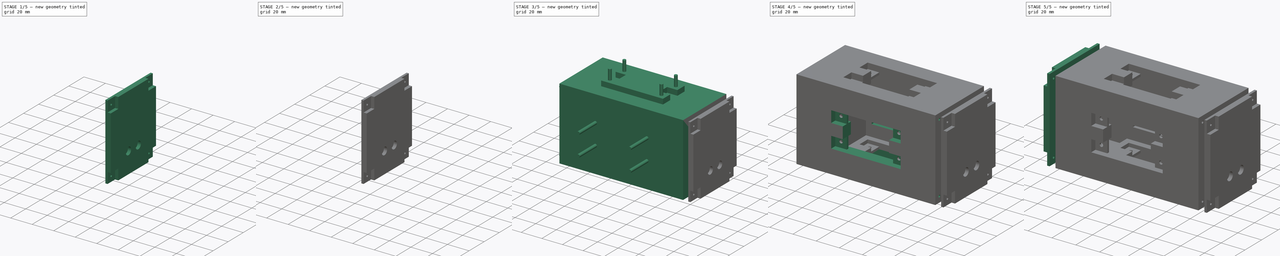
[diagram: build sequence overview — one tinted view per stage of 5, left to right]
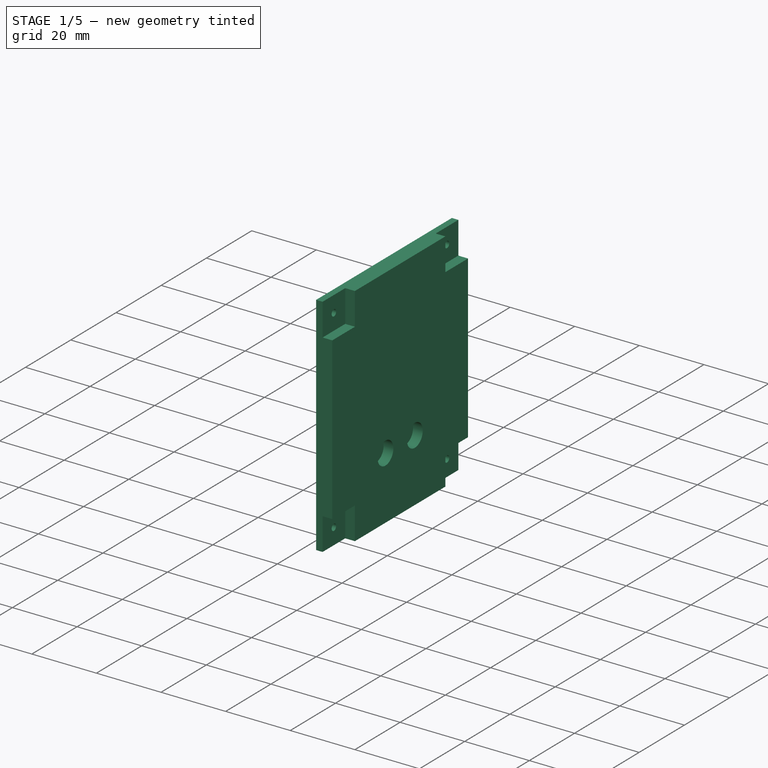
[diagram: stage 1 of 5 — iso view after this stage's code; geometry added in this stage tinted green]
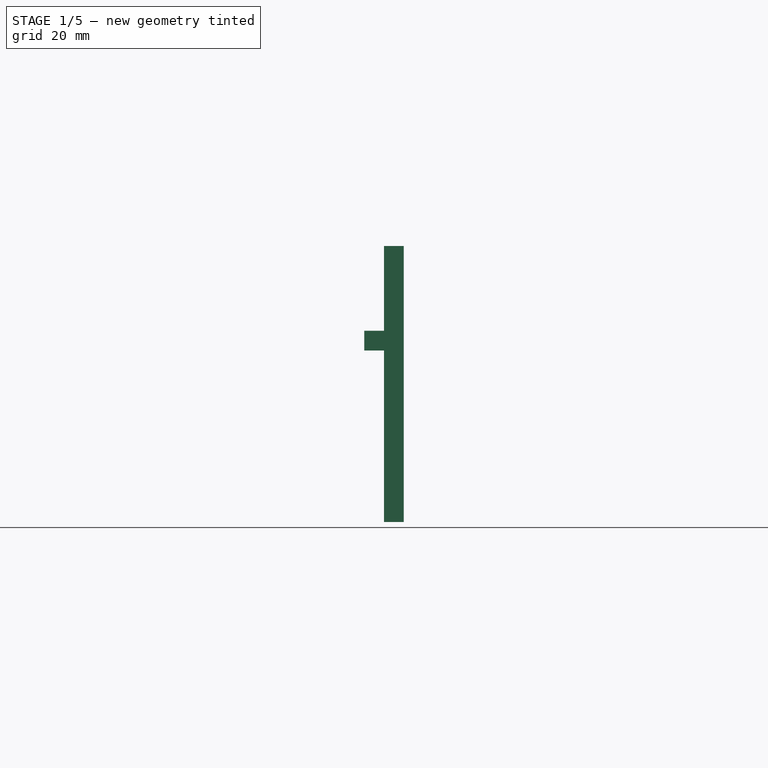
[diagram: stage 1 of 5 — front view after this stage's code; geometry added in this stage tinted green]
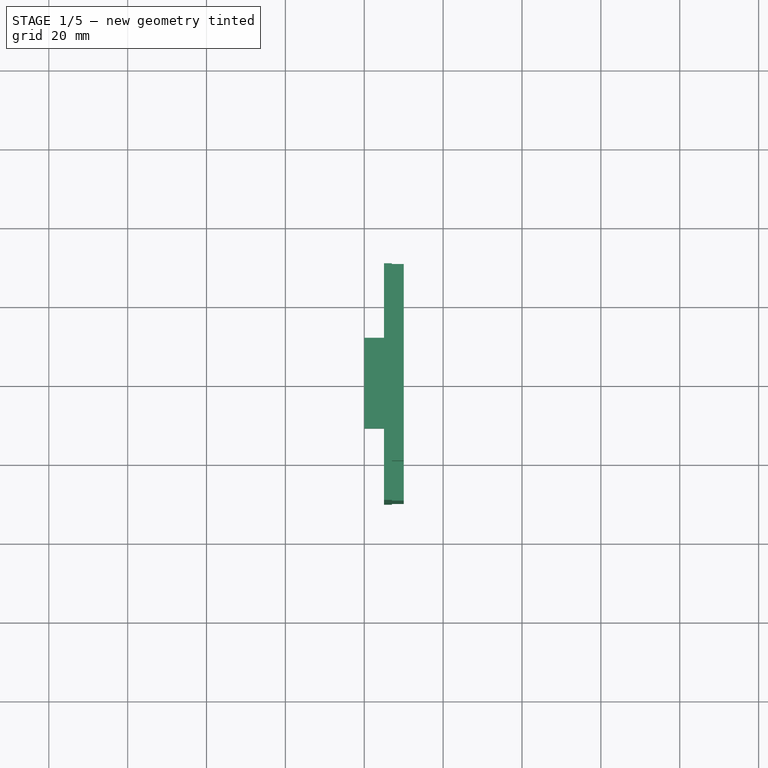
[diagram: stage 1 of 5 — top view after this stage's code; geometry added in this stage tinted green]
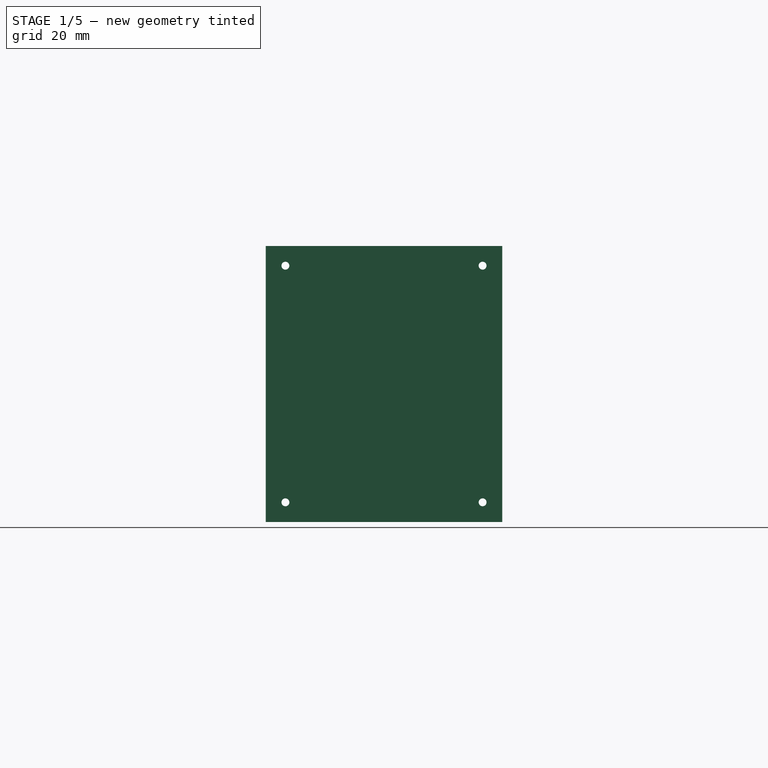
[diagram: stage 1 of 5 — right view after this stage's code; geometry added in this stage tinted green]
FCSTD DOCUMENT  (FreeCAD 0.16R6712 (Git))
Label: Control
License: All rights reserved
LicenseURL: http://en.wikipedia.org/wiki/All_rights_reserved
objects: Part::Cut×17, Part::FeaturePython×14, Part::Box×12, Sketcher::SketchObject×11, Part::Cylinder×10, PartDesign::Pad×6, PartDesign::Pocket×5, App::DocumentObjectGroup×3, Part::Chamfer×1, Part::MultiFuse×1
note: 88 computed .brp shape members not serialized (recipe doc carries the construction recipe); baked Part::Feature solids carry a one-line shape summary decoded from their .brp

FEATURE [Part::Box] Box004  label="BaseTapa001"
  Height = 70
  Length = 5
  Width = 60
FEATURE [Part::Box] Box005  label="HuecoTapa001"
  Height = 10
  Length = 3
  Width = 10
FEATURE [Part::FeaturePython] Array006  label="HuecosTapa001"  # Draft array (typed FeaturePython)
  Angle = 360
  ArrayType = 0
  Axis = (0,0,1)
  Base = -> Box005
  Center = (0,0,0)
  Fuse = false
  IntervalAxis = (0,0,0)
  IntervalX = (0,0,60)
  IntervalY = (0,50,0)
  IntervalZ = (0,0,0)
  NumberPolar = 1
  NumberX = 2
  NumberY = 2
  NumberZ = 1
  Placement = pos=(2,0,0) rot=(0,0,1;0rad)
FEATURE [Part::Cut] Cut007  label="BaseTapa_003"
  Base = -> Box004
  Tool = -> Array006
FEATURE [Part::Cylinder] Cylinder005  label="AgujeroTapa001"
  Angle = 360
  Height = 30
  Placement = pos=(-10,5,5) rot=(0,1,0;1.5708rad)
  Radius = 1
FEATURE [Part::FeaturePython] Array007  label="AgujerosTapa001"  # Draft array (typed FeaturePython)
  Angle = 360
  ArrayType = 0
  Axis = (0,0,1)
  Base = -> Cylinder005
  Center = (0,0,0)
  Fuse = false
  IntervalAxis = (0,0,0)
  IntervalX = (0,0,60)
  IntervalY = (0,50,0)
  IntervalZ = (0,0,0)
  NumberPolar = 1
  NumberX = 2
  NumberY = 2
  NumberZ = 1
FEATURE [Part::Cut] Cut008  label="BaseTapa_B"
  Base = -> Cut007
  Placement = pos=(125,-10,-10) rot=(0,0,1;0rad)
  Tool = -> Array007
FEATURE [Sketcher::SketchObject] Sketch010
  ExternalGeometry = -> [Cut008]
  Placement = pos=(125,-10,-10) rot=(0.57735,-0.57735,-0.57735;2.0944rad)
  Support = -> Cut008 [Face1]
  sketch-geometry (4):
    g0: LineSegment StartX=-41.5 StartY=48.5 StartZ=0 EndX=-18.5 EndY=48.5 EndZ=0
    g1: LineSegment StartX=-18.5 StartY=48.5 StartZ=0 EndX=-18.5 EndY=43.5 EndZ=0
    g2: LineSegment StartX=-18.5 StartY=43.5 StartZ=0 EndX=-41.5 EndY=43.5 EndZ=0
    g3: LineSegment StartX=-41.5 StartY=43.5 StartZ=0 EndX=-41.5 EndY=48.5 EndZ=0
  constraints (14):
    c: Coincident(g0,g1)
    c: Coincident(g1,g2)
    c: Coincident(g2,g3)
    c: Coincident(g3,g0)
    c: Horizontal(g0)
    c: Horizontal(g2)
    c: Vertical(g1)
    c: Vertical(g3)
    c: Equal(g0,g2)
    c: Equal(g3,g1)
    c: DistanceY(g3,g3) = 5
    c: DistanceX(g-3,g0) = 18.5
    c: DistanceY(g0,g-3) = 21.5
    c: DistanceX(g0,g0) = 23
FEATURE [PartDesign::Pad] Pad005  label="BaseTapa_B_2"
  Length = 5
  Length2 = 100
  Placement = pos=(125,-10,-10) rot=(0,0,1;0rad)
  Sketch = -> Sketch010
  Type = 0
FEATURE [Part::Cylinder] Cylinder008  label="AgujeroINT_SopMov"
  Angle = 360
  Height = 2
  Placement = pos=(125,13.5,9.5) rot=(0,1,0;1.5708rad)
  Radius = 1.5
FEATURE [Part::Cylinder] Cylinder009  label="AgujeroEXT_SopMov"
  Angle = 360
  Height = 3
  Placement = pos=(127,13.5,9.5) rot=(0,1,0;1.5708rad)
  Radius = 3.5
FEATURE [Part::FeaturePython] Array012  label="AgujerosINT_SopMov"  # Draft array (typed FeaturePython)
  Angle = 360
  ArrayType = 0
  Axis = (0,0,1)
  Base = -> Cylinder008
  Center = (0,0,0)
  Fuse = false
  IntervalAxis = (0,0,0)
  IntervalX = (0,0,0)
  IntervalY = (0,13,0)
  IntervalZ = (0,0,0)
  NumberPolar = 1
  NumberX = 1
  NumberY = 2
  NumberZ = 1
FEATURE [Part::FeaturePython] Array013  label="AgujerosEXT_SopMov"  # Draft array (typed FeaturePython)
  Angle = 360
  ArrayType = 0
  Axis = (0,0,1)
  Base = -> Cylinder009
  Center = (0,0,0)
  Fuse = false
  IntervalAxis = (0,0,0)
  IntervalX = (0,0,0)
  IntervalY = (0,13,0)
  IntervalZ = (0,0,0)
  NumberPolar = 1
  NumberX = 1
  NumberY = 2
  NumberZ = 1
FEATURE [Part::Cut] Cut015  label="BaseTapa_B_3"
  Base = -> Pad005
  Tool = -> Array013
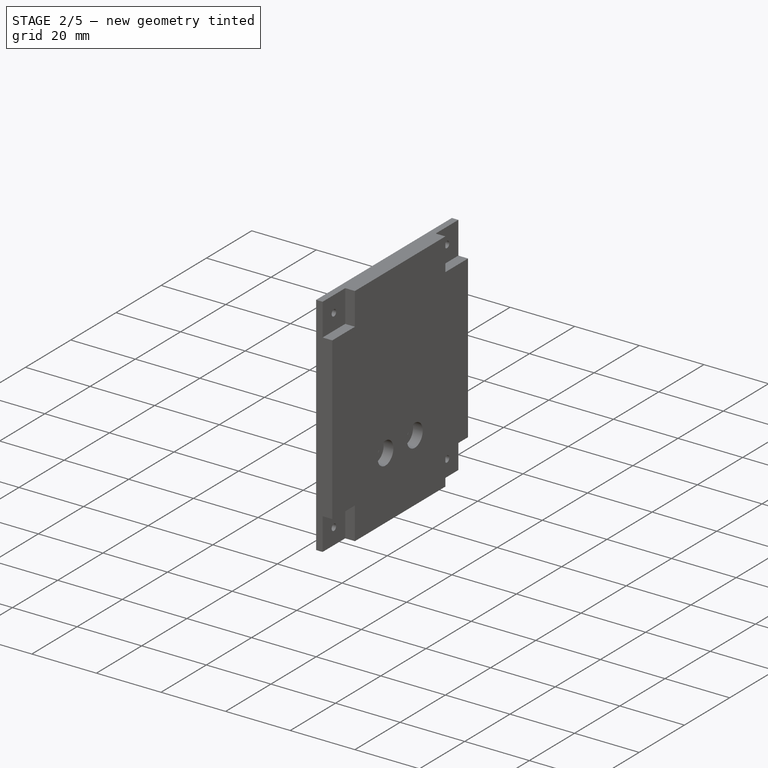
[diagram: stage 2 of 5 — iso view after this stage's code; geometry added in this stage tinted green]
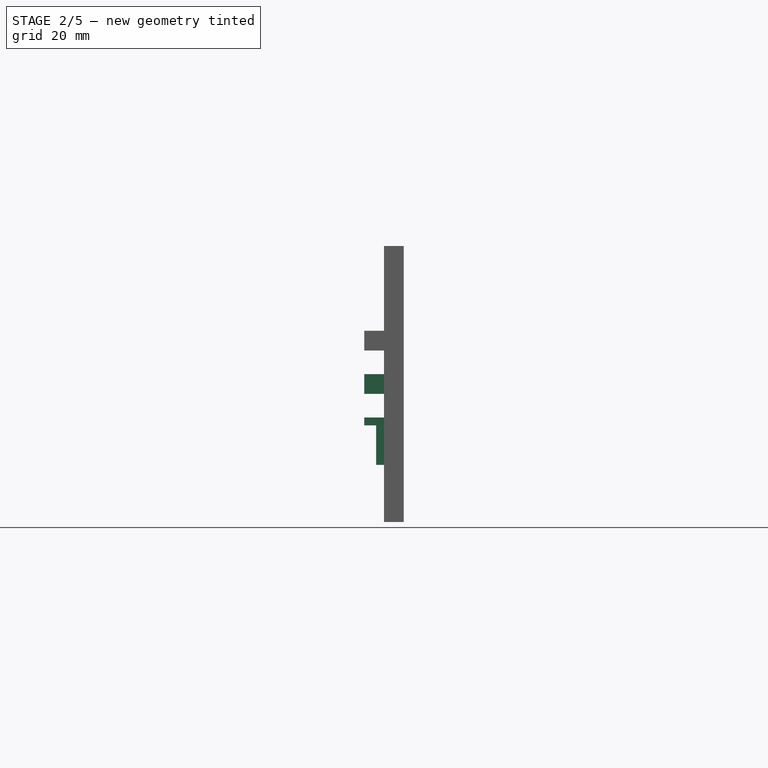
[diagram: stage 2 of 5 — front view after this stage's code; geometry added in this stage tinted green]
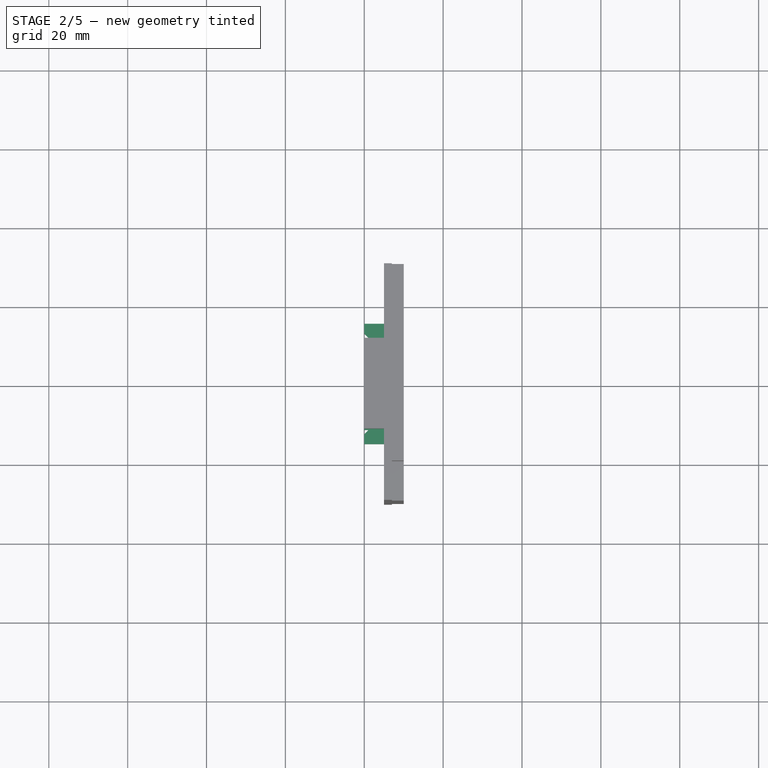
[diagram: stage 2 of 5 — top view after this stage's code; geometry added in this stage tinted green]
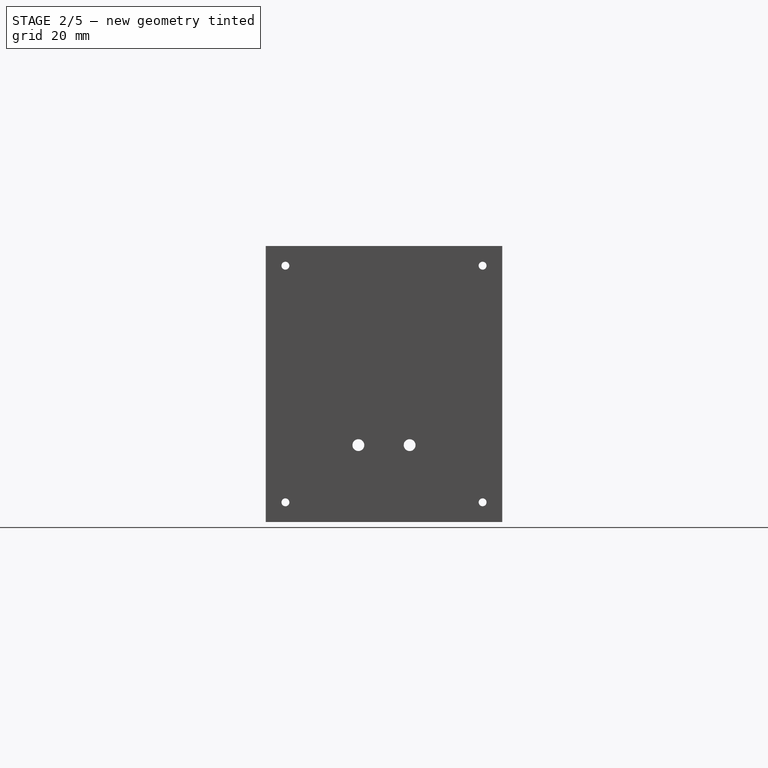
[diagram: stage 2 of 5 — right view after this stage's code; geometry added in this stage tinted green]
FEATURE [Part::Box] Box008  label="Clavija_base"
  Height = 5
  Length = 5
  Width = 5
FEATURE [Part::FeaturePython] Array010  label="Clavijas_base"  # Draft array (typed FeaturePython)
  Angle = 360
  ArrayType = 0
  Axis = (0,0,1)
  Base = -> Box008
  Center = (0,0,0)
  Fuse = false
  IntervalAxis = (0,0,0)
  IntervalX = (25.5,0,0)
  IntervalY = (0,0,0)
  IntervalZ = (0,0,0)
  NumberPolar = 1
  NumberX = 2
  NumberY = 1
  NumberZ = 1
FEATURE [Part::Box] Box009  label="Hueco_clavijas"
  Height = 2
  Length = 23
  Placement = pos=(3.75,0,0) rot=(0,0,1;0rad)
  Width = 5
FEATURE [Part::Cut] Cut012  label="Clavijas_base_2"
  Base = -> Array010
  Tool = -> Box009
FEATURE [Part::Chamfer] Chamfer  label="Clavijas"
  Base = -> Cut012
  Edges = 2 edges r=2.5: [Edge11,Edge20]
  Placement = pos=(125,35.25,22.5) rot=(0.57735,-0.57735,-0.57735;2.0944rad)
FEATURE [Part::Box] Box010  label="TB_SoporteMovil_base"
  Height = 12
  Length = 5
  Width = 23
FEATURE [Part::Box] Box011  label="TB_SoporteMovil_hueco"
  Height = 10
  Length = 3
  Width = 23
FEATURE [Part::Cut] Cut013  label="TB_SoporteMovil_base_2"
  Base = -> Box010
  Placement = pos=(120,8.5,4.5) rot=(0,0,1;0rad)
  Tool = -> Box011
FEATURE [Part::Cylinder] Cylinder007  label="TB_SopMov_Agujero"
  Angle = 360
  Height = 5
  Placement = pos=(120,13.5,9.5) rot=(0,1,0;1.5708rad)
  Radius = 1.5
FEATURE [Part::FeaturePython] Array011  label="TB_SopMov_Agujeros"  # Draft array (typed FeaturePython)
  Angle = 360
  ArrayType = 0
  Axis = (0,0,1)
  Base = -> Cylinder007
  Center = (0,0,0)
  Fuse = false
  IntervalAxis = (0,0,0)
  IntervalX = (0,0,0)
  IntervalY = (0,13,0)
  IntervalZ = (0,0,0)
  NumberPolar = 1
  NumberX = 1
  NumberY = 2
  NumberZ = 1
FEATURE [Part::Cut] Cut014  label="SoporteMovil"
  Base = -> Cut013
  Tool = -> Array011
FEATURE [Part::Cut] Cut016  label="BaseTapa_B_4"
  Base = -> Cut015
  Tool = -> Array012
FEATURE [Part::MultiFuse] Fusion  label="TapaB"
  Shapes = -> [Chamfer,Cut016]
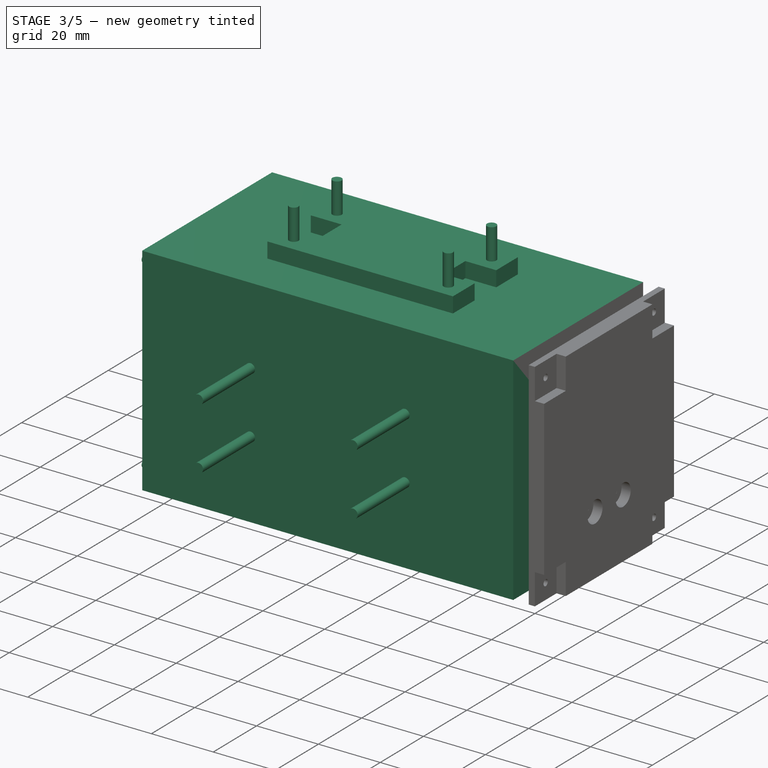
[diagram: stage 3 of 5 — iso view after this stage's code; geometry added in this stage tinted green]
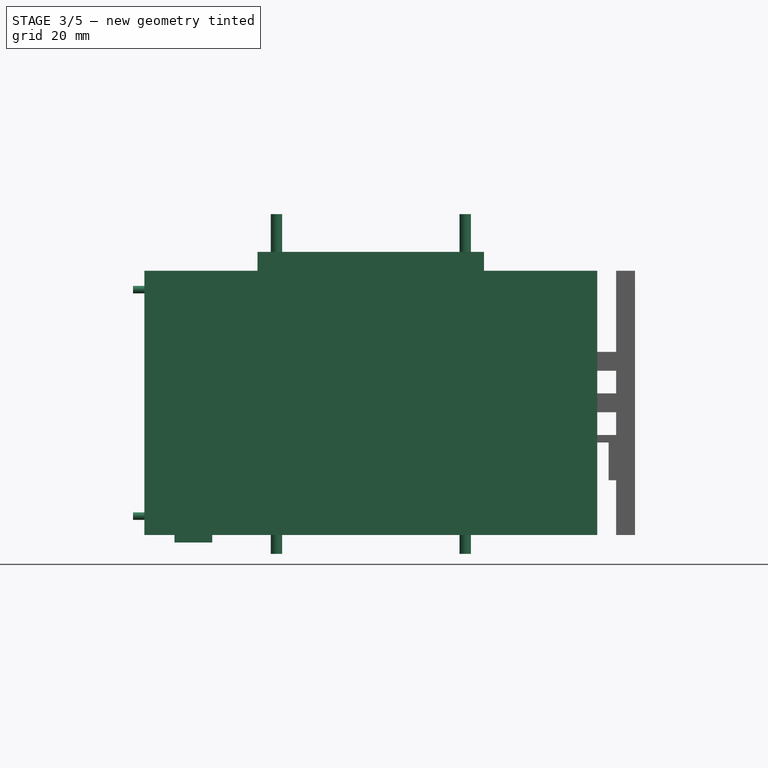
[diagram: stage 3 of 5 — front view after this stage's code; geometry added in this stage tinted green]
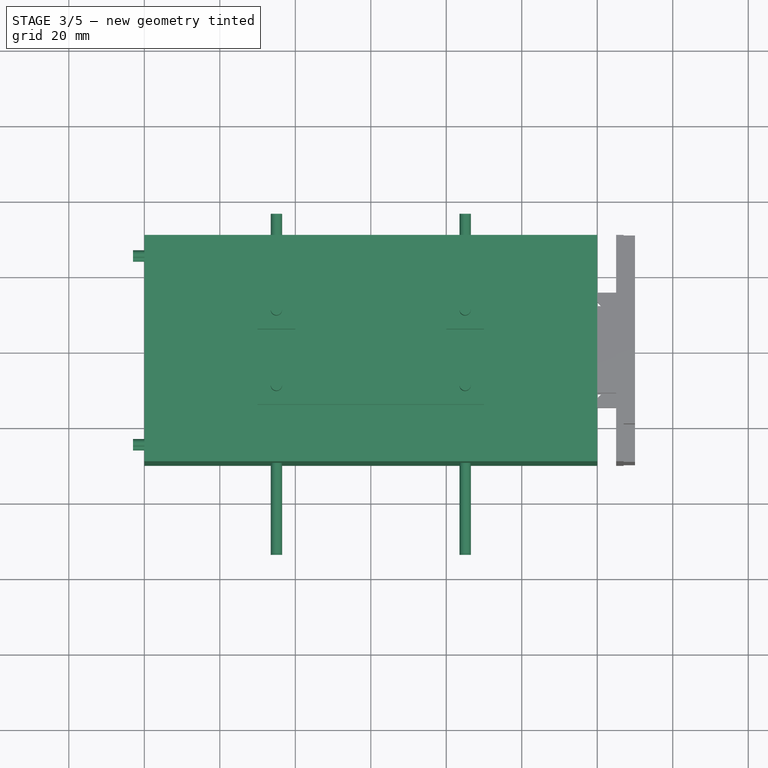
[diagram: stage 3 of 5 — top view after this stage's code; geometry added in this stage tinted green]
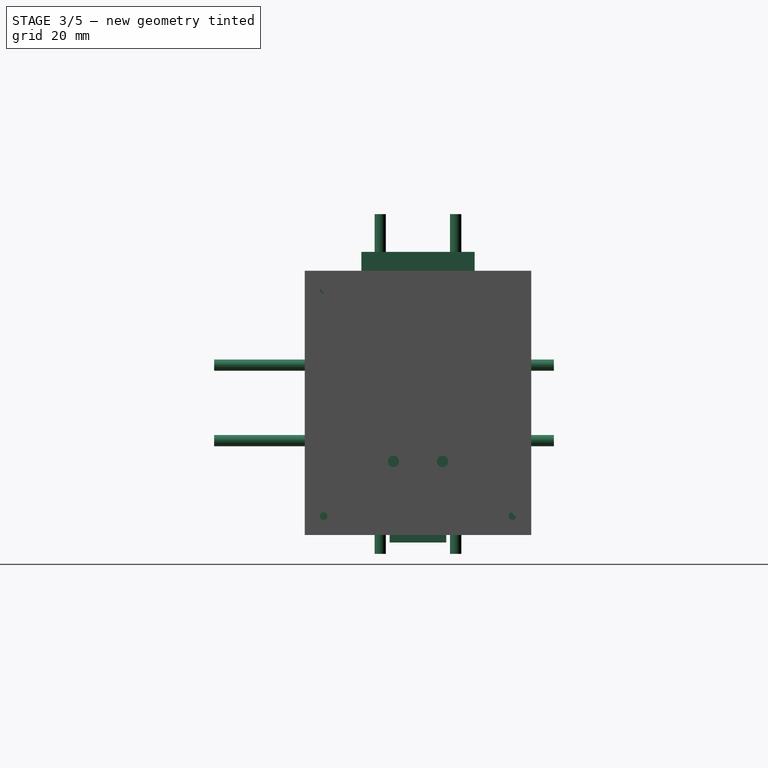
[diagram: stage 3 of 5 — right view after this stage's code; geometry added in this stage tinted green]
FEATURE [Part::Box] Box  label="Cubo"
  Height = 50
  Length = 120
  Width = 40
FEATURE [Sketcher::SketchObject] Sketch
  ExternalGeometry = -> [Box]
  Placement = pos=(0,0,50) rot=(0,0,1;0rad)
  Support = -> Box [Face6]
  sketch-geometry (12):
    g0: LineSegment StartX=30 StartY=35 StartZ=0 EndX=90 EndY=35 EndZ=0
    g1: LineSegment StartX=90 StartY=35 StartZ=0 EndX=90 EndY=25 EndZ=0
    g2: LineSegment StartX=90 StartY=25 StartZ=0 EndX=80 EndY=25 EndZ=0
    g3: LineSegment StartX=80 StartY=25 StartZ=0 EndX=80 EndY=15 EndZ=0
    g4: LineSegment StartX=80 StartY=15 StartZ=0 EndX=90 EndY=15 EndZ=0
    g5: LineSegment StartX=90 StartY=15 StartZ=0 EndX=90 EndY=5 EndZ=0
    g6: LineSegment StartX=90 StartY=5 StartZ=0 EndX=30 EndY=5 EndZ=0
    g7: LineSegment StartX=30 StartY=5 StartZ=0 EndX=30 EndY=15 EndZ=0
    g8: LineSegment StartX=30 StartY=15 StartZ=0 EndX=40 EndY=15 EndZ=0
    g9: LineSegment StartX=40 StartY=15 StartZ=0 EndX=40 EndY=25 EndZ=0
    g10: LineSegment StartX=40 StartY=25 StartZ=0 EndX=30 EndY=25 EndZ=0
    g11: LineSegment StartX=30 StartY=25 StartZ=0 EndX=30 EndY=35 EndZ=0
  constraints (38):
    c: Horizontal(g0)
    c: Coincident(g0,g1)
    c: Vertical(g1)
    c: Coincident(g1,g2)
    c: Horizontal(g2)
    c: Coincident(g2,g3)
    c: Coincident(g3,g4)
    c: Horizontal(g4)
    c: Coincident(g4,g5)
    c: Coincident(g5,g6)
    c: Horizontal(g6)
    c: Coincident(g6,g7)
    c: Coincident(g7,g8)
    c: Horizontal(g8)
    c: Coincident(g8,g9)
    c: Coincident(g9,g10)
    c: Coincident(g10,g11)
    c: Coincident(g11,g0)
    c: Vertical(g11)
    c: Horizontal(g10)
    c: Vertical(g3)
    c: Vertical(g9)
    c: Vertical(g7)
    c: Vertical(g5)
    c: Equal(g0,g6)
    c: Equal(g10,g8)
    c: Equal(g8,g4)
    c: Equal(g4,g2)
    c: DistanceX(g0,g0) = 60
    c: Equal(g11,g1)
    c: Equal(g1,g7)
    c: Equal(g7,g9)
    c: Equal(g9,g3)
    c: Equal(g3,g5)
    c: DistanceY(g1,g1) = 10
    c: DistanceX(g4,g4) = 10
    c: DistanceY(g0,g-4) = 5
    c: DistanceX(g0,g-4) = 30
FEATURE [PartDesign::Pad] Pad
  Length = 3
  Length2 = 53
  Sketch = -> Sketch
  Type = 4
FEATURE [Sketcher::SketchObject] Sketch001
  ExternalGeometry = -> [Pad]
  Placement = pos=(0,0,53) rot=(0,0,1;0rad)
  Support = -> Pad [Face31]
  sketch-geometry (4):
    g0: LineSegment StartX=80 StartY=35 StartZ=0 EndX=40 EndY=35 EndZ=0
    g1: LineSegment StartX=40 StartY=35 StartZ=0 EndX=40 EndY=5 EndZ=0
    g2: LineSegment StartX=40 StartY=5 StartZ=0 EndX=80 EndY=5 EndZ=0
    g3: LineSegment StartX=80 StartY=5 StartZ=0 EndX=80 EndY=35 EndZ=0
  constraints (14):
    c: Coincident(g0,g1)
    c: Coincident(g1,g2)
    c: Coincident(g2,g3)
    c: Coincident(g3,g0)
    c: Horizontal(g0)
    c: Horizontal(g2)
    c: Vertical(g1)
    c: Vertical(g3)
    c: Equal(g0,g2)
    c: Equal(g3,g1)
    c: DistanceX(g0,g0) = 40
    c: DistanceY(g3,g3) = 30
    c: PointOnObject(g0,g-3)
    c: DistanceX(g0,g-3) = 10
FEATURE [PartDesign::Pad] Pad001
  Length = 2
  Length2 = 58
  Sketch = -> Sketch001
  Type = 4
FEATURE [Sketcher::SketchObject] Sketch002
  ExternalGeometry = -> [Pad001]
  Placement = pos=(0,0,55) rot=(0,0,1;0rad)
  Support = -> Pad001 [Face32]
  sketch-geometry (12):
    g0: LineSegment StartX=30 StartY=35 StartZ=0 EndX=90 EndY=35 EndZ=0
    g1: LineSegment StartX=90 StartY=35 StartZ=0 EndX=90 EndY=25 EndZ=0
    g2: LineSegment StartX=90 StartY=25 StartZ=0 EndX=80 EndY=25 EndZ=0
    g3: LineSegment StartX=80 StartY=25 StartZ=0 EndX=80 EndY=15 EndZ=0
    g4: LineSegment StartX=80 StartY=15 StartZ=0 EndX=90 EndY=15 EndZ=0
    g5: LineSegment StartX=90 StartY=15 StartZ=0 EndX=90 EndY=5 EndZ=0
    g6: LineSegment StartX=90 StartY=5 StartZ=0 EndX=30 EndY=5 EndZ=0
    g7: LineSegment StartX=30 StartY=5 StartZ=0 EndX=30 EndY=15 EndZ=0
    g8: LineSegment StartX=30 StartY=15 StartZ=0 EndX=40 EndY=15 EndZ=0
    g9: LineSegment StartX=40 StartY=15 StartZ=0 EndX=40 EndY=25 EndZ=0
    g10: LineSegment StartX=40 StartY=25 StartZ=0 EndX=30 EndY=25 EndZ=0
    g11: LineSegment StartX=30 StartY=25 StartZ=0 EndX=30 EndY=35 EndZ=0
  constraints (38):
    c: Horizontal(g0)
    c: Coincident(g0,g1)
    c: Vertical(g1)
    c: Coincident(g1,g2)
    c: Horizontal(g2)
    c: Coincident(g2,g3)
    c: Vertical(g3)
    c: Coincident(g3,g4)
    c: Horizontal(g4)
    c: Coincident(g4,g5)
    c: Vertical(g5)
    c: Coincident(g5,g6)
    c: Horizontal(g6)
    c: Coincident(g6,g7)
    c: Vertical(g7)
    c: Coincident(g7,g8)
    c: Horizontal(g8)
    c: Coincident(g8,g9)
    c: Vertical(g9)
    c: Coincident(g9,g10)
    c: Horizontal(g10)
    c: Coincident(g10,g11)
    c: Coincident(g11,g0)
    c: Vertical(g11)
    c: Equal(g0,g6)
    c: Equal(g2,g4)
    c: Equal(g4,g8)
    c: Equal(g8,g10)
    c: Equal(g1,g11)
    c: Equal(g11,g9)
    c: Equal(g9,g3)
    c: Equal(g3,g5)
    c: Equal(g5,g7)
    c: DistanceX(g0,g0) = 60
    c: DistanceY(g1,g1) = 10
    c: DistanceX(g4,g4) = 10
    c: PointOnObject(g9,g-4)
    c: DistanceY(g9,g-4) = 10
FEATURE [PartDesign::Pad] Pad002
  Length = 10
  Length2 = 100
  Sketch = -> Sketch002
  Type = 0
FEATURE [App::DocumentObjectGroup] Grupo  label="InteriorControl_Partes"
  Group = -> [Box,Pad,Pad001,Pad002,Pad003,Pad004,Pocket,Pocket001,Pocket002]
FEATURE [Part::Box] Box001  label="Base"
  Height = 70
  Length = 120
  Placement = pos=(0,-10,-10) rot=(0,0,1;0rad)
  Width = 60
FEATURE [Part::Cylinder] Cylinder  label="Agujero_6x13"
  Angle = 360
  Height = 90
  Radius = 1.5
FEATURE [Part::FeaturePython] Array  label="Agujeros_6x13"  # Draft array (typed FeaturePython)
  Angle = 360
  ArrayType = 0
  Axis = (0,0,1)
  Base = -> Cylinder
  Center = (0,0,0)
  Fuse = false
  IntervalAxis = (0,0,0)
  IntervalX = (50,0,0)
  IntervalY = (0,20,0)
  IntervalZ = (0,0,0)
  NumberPolar = 1
  NumberX = 2
  NumberY = 2
  NumberZ = 1
  Placement = pos=(35,10,-15) rot=(0,0,1;0rad)
FEATURE [Part::Cylinder] Cylinder001  label="Agujero_7x13"
  Angle = 360
  Height = 90
  Placement = pos=(0,0,0) rot=(1,0,0;1.5708rad)
  Radius = 1.5
FEATURE [Part::FeaturePython] Array001  label="Agujeros_7x13"  # Draft array (typed FeaturePython)
  Angle = 360
  ArrayType = 0
  Axis = (0,0,1)
  Base = -> Cylinder001
  Center = (0,0,0)
  Fuse = false
  IntervalAxis = (0,0,0)
  IntervalX = (50,0,0)
  IntervalY = (0,0,20)
  IntervalZ = (0,0,0)
  NumberPolar = 1
  NumberX = 2
  NumberY = 2
  NumberZ = 1
  Placement = pos=(35,56,15) rot=(0,0,1;0rad)
FEATURE [Part::Cylinder] Cylinder002  label="AgujeroCarcasa_A"
  Angle = 360
  Height = 6
  Placement = pos=(0,0,0) rot=(0,1,0;1.5708rad)
  Radius = 1
FEATURE [Part::FeaturePython] Array002  label="AgujerosCarcasa_A"  # Draft array (typed FeaturePython)
  Angle = 360
  ArrayType = 0
  Axis = (0,0,1)
  Base = -> Cylinder002
  Center = (0,0,0)
  Fuse = false
  IntervalAxis = (0,0,0)
  IntervalX = (0,50,0)
  IntervalY = (0,0,60)
  IntervalZ = (0,0,0)
  NumberPolar = 1
  NumberX = 2
  NumberY = 2
  NumberZ = 1
  Placement = pos=(-3,-5,-5) rot=(0,0,1;0rad)
FEATURE [App::DocumentObjectGroup] Grupo001  label="TapaA_Partes"
  Group = -> [Cut006]
FEATURE [App::DocumentObjectGroup] Grupo002  label="TapaB_Partes"
  Group = -> [Cut008]
FEATURE [Part::Box] Box006  label="HuecoAB"
  Height = 60
  Length = 25
  Width = 40
FEATURE [Part::FeaturePython] Array009  label="HuecosAB"  # Draft array (typed FeaturePython)
  Angle = 360
  ArrayType = 0
  Axis = (0,0,1)
  Base = -> Box006
  Center = (0,0,0)
  Fuse = false
  IntervalAxis = (0,0,0)
  IntervalX = (95,0,0)
  IntervalY = (0,0,0)
  IntervalZ = (0,0,0)
  NumberPolar = 1
  NumberX = 2
  NumberY = 1
  NumberZ = 1
  Placement = pos=(0,0,-5) rot=(0,0,1;0rad)
FEATURE [Part::Box] Box007  label="HuecoUSB"
  Height = 10
  Length = 10
  Placement = pos=(8,12.5,-12) rot=(0,0,1;0rad)
  Width = 15
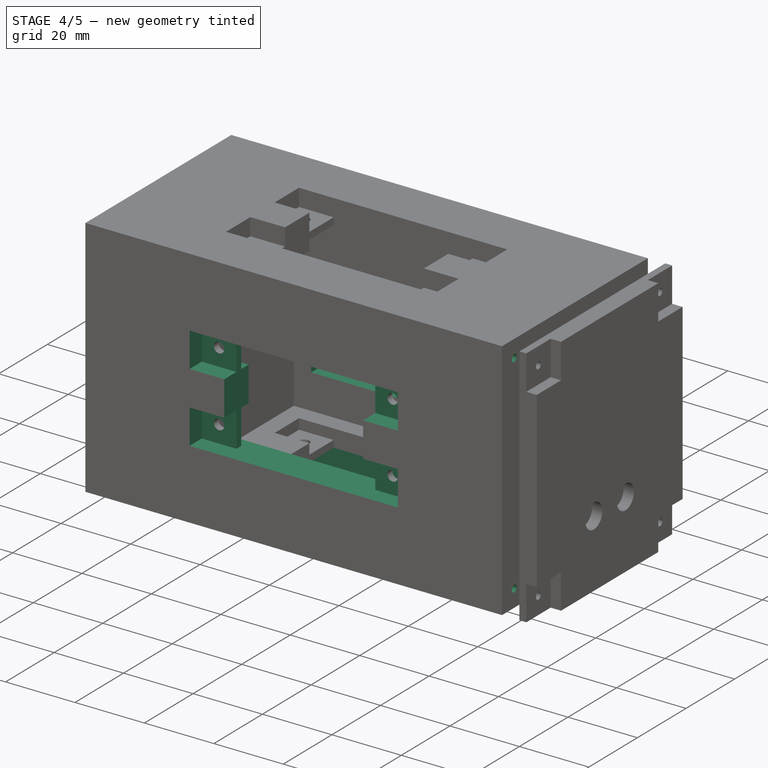
[diagram: stage 4 of 5 — iso view after this stage's code; geometry added in this stage tinted green]
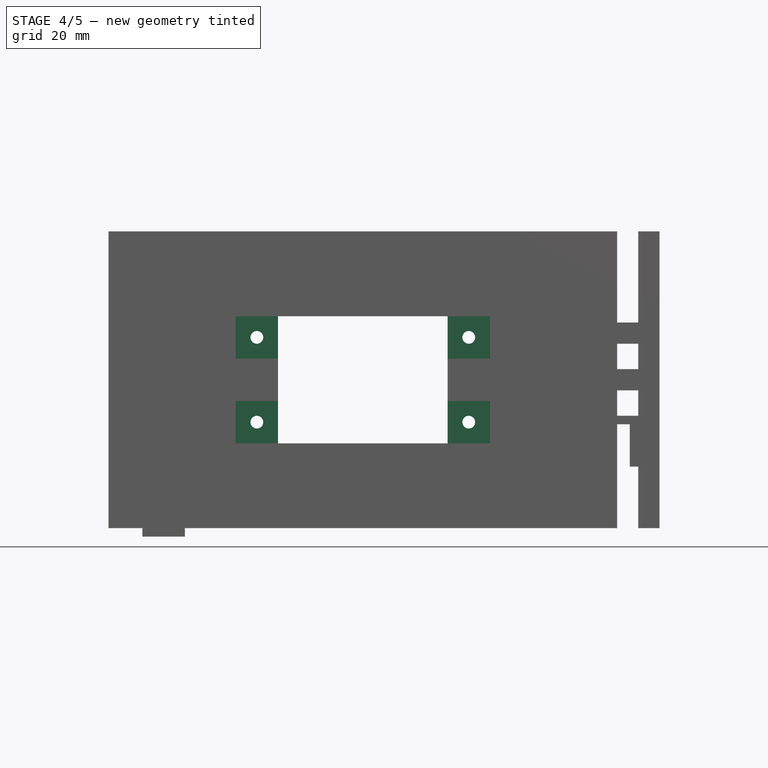
[diagram: stage 4 of 5 — front view after this stage's code; geometry added in this stage tinted green]
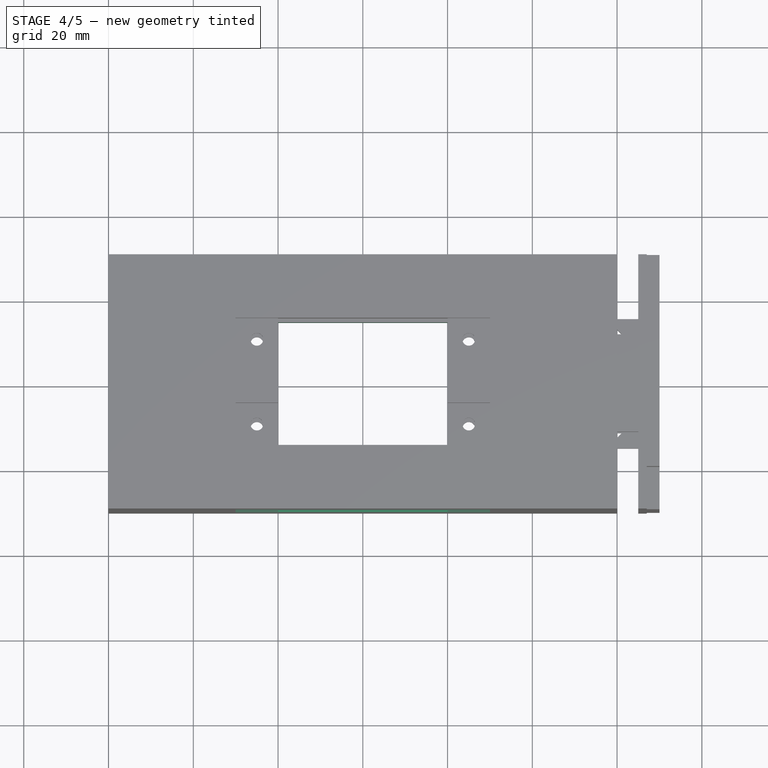
[diagram: stage 4 of 5 — top view after this stage's code; geometry added in this stage tinted green]
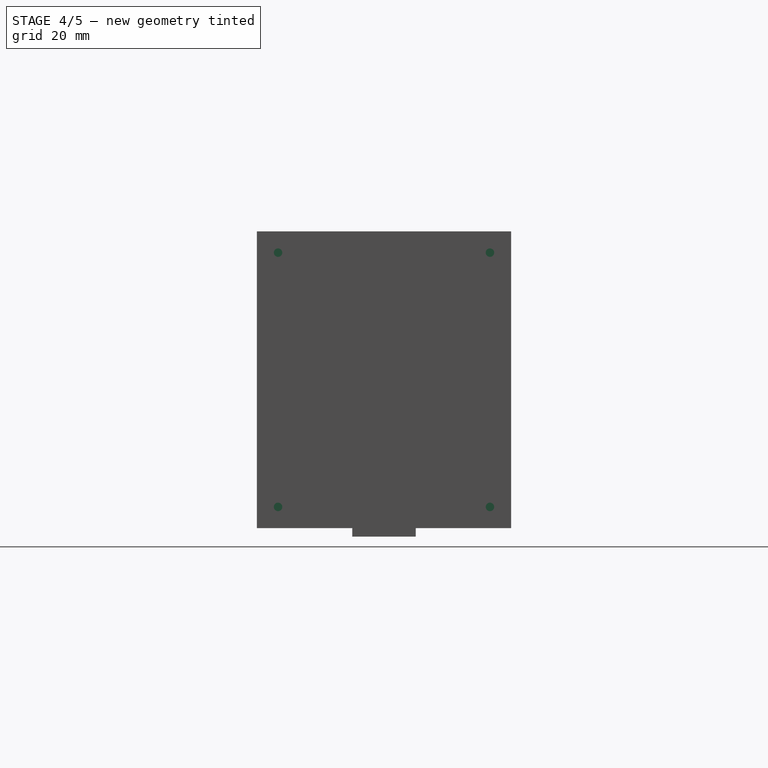
[diagram: stage 4 of 5 — right view after this stage's code; geometry added in this stage tinted green]
FEATURE [Sketcher::SketchObject] Sketch003
  ExternalGeometry = -> [Pad002]
  Placement = pos=(0,0,-5) rot=(1,0,0;3.14159rad)
  Support = -> Pad002 [Face32]
  sketch-geometry (12):
    g0: LineSegment StartX=30 StartY=-5 StartZ=0 EndX=90 EndY=-5 EndZ=0
    g1: LineSegment StartX=90 StartY=-5 StartZ=0 EndX=90 EndY=-15 EndZ=0
    g2: LineSegment StartX=90 StartY=-15 StartZ=0 EndX=80 EndY=-15 EndZ=0
    g3: LineSegment StartX=80 StartY=-15 StartZ=0 EndX=80 EndY=-25 EndZ=0
    g4: LineSegment StartX=80 StartY=-25 StartZ=0 EndX=90 EndY=-25 EndZ=0
    g5: LineSegment StartX=90 StartY=-25 StartZ=0 EndX=90 EndY=-35 EndZ=0
    g6: LineSegment StartX=90 StartY=-35 StartZ=0 EndX=30 EndY=-35 EndZ=0
    g7: LineSegment StartX=30 StartY=-35 StartZ=0 EndX=30 EndY=-25 EndZ=0
    g8: LineSegment StartX=30 StartY=-25 StartZ=0 EndX=40 EndY=-25 EndZ=0
    g9: LineSegment StartX=40 StartY=-25 StartZ=0 EndX=40 EndY=-15 EndZ=0
    g10: LineSegment StartX=40 StartY=-15 StartZ=0 EndX=30 EndY=-15 EndZ=0
    g11: LineSegment StartX=30 StartY=-15 StartZ=0 EndX=30 EndY=-5 EndZ=0
  constraints (38):
    c: Horizontal(g0)
    c: Coincident(g0,g1)
    c: Coincident(g1,g2)
    c: Horizontal(g2)
    c: Coincident(g2,g3)
    c: Vertical(g3)
    c: Coincident(g3,g4)
    c: Coincident(g4,g5)
    c: Coincident(g5,g6)
    c: Coincident(g6,g7)
    c: Coincident(g7,g8)
    c: Coincident(g8,g9)
    c: Vertical(g9)
    c: Coincident(g9,g10)
    c: Coincident(g10,g11)
    c: Coincident(g11,g0)
    c: Horizontal(g10)
    c: Horizontal(g8)
    c: Horizontal(g4)
    c: Horizontal(g6)
    c: Vertical(g5)
    c: Vertical(g7)
    c: Vertical(g11)
    c: Vertical(g1)
    c: Equal(g0,g6)
    c: Equal(g3,g9)
    c: Equal(g9,g11)
    c: Equal(g11,g1)
    c: Equal(g1,g5)
    c: Equal(g5,g7)
    c: Equal(g10,g8)
    c: Equal(g8,g4)
    c: Equal(g4,g2)
    c: DistanceY(g1,g1) = 10
    c: DistanceX(g0,g0) = 60
    c: DistanceX(g4,g4) = 10
    c: PointOnObject(g9,g-3)
    c: DistanceY(g9,g-3) = 10
FEATURE [PartDesign::Pad] Pad003
  Length = 10
  Length2 = 100
  Sketch = -> Sketch003
  Type = 0
FEATURE [Sketcher::SketchObject] Sketch004
  ExternalGeometry = -> [Pad003]
  Placement = pos=(0,0,0) rot=(1,0,0;1.5708rad)
  Support = -> Pad003 [Face2]
  sketch-geometry (4):
    g0: LineSegment StartX=30 StartY=40 StartZ=0 EndX=90 EndY=40 EndZ=0
    g1: LineSegment StartX=90 StartY=40 StartZ=0 EndX=90 EndY=10 EndZ=0
    g2: LineSegment StartX=90 StartY=10 StartZ=0 EndX=30 EndY=10 EndZ=0
    g3: LineSegment StartX=30 StartY=10 StartZ=0 EndX=30 EndY=40 EndZ=0
  constraints (14):
    c: Coincident(g0,g1)
    c: Coincident(g1,g2)
    c: Coincident(g2,g3)
    c: Coincident(g3,g0)
    c: Horizontal(g0)
    c: Horizontal(g2)
    c: Vertical(g1)
    c: Vertical(g3)
    c: Equal(g0,g2)
    c: Equal(g1,g3)
    c: DistanceX(g0,g0) = 60
    c: DistanceY(g1,g1) = 30
    c: DistanceX(g0,g-4) = 30
    c: DistanceY(g0,g-4) = 10
FEATURE [PartDesign::Pad] Pad004
  Length = 20
  Length2 = 60
  Sketch = -> Sketch004
  Type = 4
FEATURE [Sketcher::SketchObject] Sketch005
  ExternalGeometry = -> [Pad004]
  Placement = pos=(30,0,0) rot=(0.57735,-0.57735,-0.57735;2.0944rad)
  Support = -> Pad004 [Face7]
  sketch-geometry (16):
    g0: LineSegment StartX=-45 StartY=40 StartZ=0 EndX=-43 EndY=40 EndZ=0
    g1: LineSegment StartX=-43 StartY=40 StartZ=0 EndX=-43 EndY=30 EndZ=0
    g2: LineSegment StartX=-43 StartY=30 StartZ=0 EndX=-45 EndY=30 EndZ=0
    g3: LineSegment StartX=-45 StartY=30 StartZ=0 EndX=-45 EndY=40 EndZ=0
    g4: LineSegment StartX=3 StartY=40 StartZ=0 EndX=5 EndY=40 EndZ=0
    g5: LineSegment StartX=5 StartY=40 StartZ=0 EndX=5 EndY=30 EndZ=0
    g6: LineSegment StartX=5 StartY=30 StartZ=0 EndX=3 EndY=30 EndZ=0
    g7: LineSegment StartX=3 StartY=30 StartZ=0 EndX=3 EndY=40 EndZ=0
    g8: LineSegment StartX=-45 StartY=20 StartZ=0 EndX=-43 EndY=20 EndZ=0
    g9: LineSegment StartX=-43 StartY=20 StartZ=0 EndX=-43 EndY=10 EndZ=0
    g10: LineSegment StartX=-43 StartY=10 StartZ=0 EndX=-45 EndY=10 EndZ=0
    g11: LineSegment StartX=-45 StartY=10 StartZ=0 EndX=-45 EndY=20 EndZ=0
    g12: LineSegment StartX=3 StartY=20 StartZ=0 EndX=5 EndY=20 EndZ=0
    g13: LineSegment StartX=5 StartY=20 StartZ=0 EndX=5 EndY=10 EndZ=0
    g14: LineSegment StartX=5 StartY=10 StartZ=0 EndX=3 EndY=10 EndZ=0
    g15: LineSegment StartX=3 StartY=10 StartZ=0 EndX=3 EndY=20 EndZ=0
  constraints (56):
    c: Coincident(g0,g1)
    c: Coincident(g1,g2)
    c: Coincident(g2,g3)
    c: Coincident(g3,g0)
    c: Horizontal(g0)
    c: Horizontal(g2)
    c: Vertical(g1)
    c: Vertical(g3)
    c: Equal(g0,g2)
    c: Equal(g3,g1)
    c: DistanceX(g0,g0) = 2
    c: DistanceY(g1,g1) = 10
    c: Coincident(g4,g5)
    c: Coincident(g5,g6)
    c: Coincident(g6,g7)
    c: Coincident(g7,g4)
    c: Horizontal(g4)
    c: Horizontal(g6)
    c: Vertical(g5)
    c: Vertical(g7)
    c: Equal(g4,g6)
    c: Equal(g7,g5)
    c: Equal(g0,g4) = 2
    c: Equal(g1,g5) = 10
    c: Coincident(g8,g9)
    c: Coincident(g9,g10)
    c: Coincident(g10,g11)
    c: Coincident(g11,g8)
    c: Horizontal(g8)
    c: Horizontal(g10)
    c: Vertical(g9)
    c: Vertical(g11)
    c: Equal(g8,g10)
    c: Equal(g11,g9)
    c: Equal(g0,g8) = 2
    c: Equal(g1,g9) = 10
    c: Coincident(g12,g13)
    c: Coincident(g13,g14)
    c: Coincident(g14,g15)
    c: Coincident(g15,g12)
    c: Horizontal(g12)
    c: Horizontal(g14)
    c: Vertical(g13)
    c: Vertical(g15)
    c: Equal(g12,g14)
    c: Equal(g15,g13)
    c: Equal(g0,g12) = 2
    c: Equal(g1,g13) = 10
    c: PointOnObject(g10,g-6)
    c: DistanceX(g9,g-6) = 3
    c: PointOnObject(g0,g-8)
    c: DistanceX(g0,g-8) = 3
    c: PointOnObject(g4,g-3)
    c: DistanceX(g-3,g4) = 3
    c: PointOnObject(g14,g-5)
    c: DistanceX(g-5,g14) = 3
FEATURE [PartDesign::Pocket] Pocket
  Length = 10
  Sketch = -> Sketch005
  Type = 0
FEATURE [Sketcher::SketchObject] Sketch006
  ExternalGeometry = -> [Pocket]
  Placement = pos=(30,0,0) rot=(0.57735,-0.57735,-0.57735;2.0944rad)
  Support = -> Pocket [Face23]
  sketch-geometry (8):
    g0: LineSegment StartX=-60 StartY=30 StartZ=0 EndX=-40 EndY=30 EndZ=0
    g1: LineSegment StartX=-40 StartY=30 StartZ=0 EndX=-40 EndY=20 EndZ=0
    g2: LineSegment StartX=-40 StartY=20 StartZ=0 EndX=-60 EndY=20 EndZ=0
    g3: LineSegment StartX=-60 StartY=20 StartZ=0 EndX=-60 EndY=30 EndZ=0
    g4: LineSegment StartX=0 StartY=30 StartZ=0 EndX=20 EndY=30 EndZ=0
    g5: LineSegment StartX=20 StartY=30 StartZ=0 EndX=20 EndY=20 EndZ=0
    g6: LineSegment StartX=20 StartY=20 StartZ=0 EndX=0 EndY=20 EndZ=0
    g7: LineSegment StartX=0 StartY=20 StartZ=0 EndX=0 EndY=30 EndZ=0
  constraints (28):
    c: Coincident(g0,g1)
    c: Coincident(g1,g2)
    c: Coincident(g2,g3)
    c: Coincident(g3,g0)
    c: Horizontal(g0)
    c: Horizontal(g2)
    c: Vertical(g1)
    c: Vertical(g3)
    c: Equal(g0,g2)
    c: Equal(g1,g3)
    c: DistanceX(g0,g0) = 20
    c: DistanceY(g3,g3) = 10
    c: PointOnObject(g1,g-3)
    c: DistanceY(g0,g-3) = 10
    c: Coincident(g4,g5)
    c: Coincident(g5,g6)
    c: Coincident(g6,g7)
    c: Coincident(g7,g4)
    c: Horizontal(g4)
    c: Horizontal(g6)
    c: Vertical(g5)
    c: Vertical(g7)
    c: Equal(g4,g6)
    c: Equal(g5,g7)
    c: Equal(g0,g4) = 20
    c: Equal(g3,g7) = 10
    c: PointOnObject(g4,g-5)
    c: DistanceY(g4,g-5) = 10
FEATURE [PartDesign::Pocket] Pocket001
  Length = 10
  Sketch = -> Sketch006
  Type = 0
FEATURE [Sketcher::SketchObject] Sketch007
  ExternalGeometry = -> [Pocket001]
  Placement = pos=(90,0,0) rot=(0.57735,0.57735,0.57735;2.0944rad)
  Support = -> Pocket001 [Face66]
  sketch-geometry (16):
    g0: LineSegment StartX=-5 StartY=40 StartZ=0 EndX=-3 EndY=40 EndZ=0
    g1: LineSegment StartX=-3 StartY=40 StartZ=0 EndX=-3 EndY=30 EndZ=0
    g2: LineSegment StartX=-3 StartY=30 StartZ=0 EndX=-5 EndY=30 EndZ=0
    g3: LineSegment StartX=-5 StartY=30 StartZ=0 EndX=-5 EndY=40 EndZ=0
    g4: LineSegment StartX=-5 StartY=20 StartZ=0 EndX=-3 EndY=20 EndZ=0
    g5: LineSegment StartX=-3 StartY=20 StartZ=0 EndX=-3 EndY=10 EndZ=0
    g6: LineSegment StartX=-3 StartY=10 StartZ=0 EndX=-5 EndY=10 EndZ=0
    g7: LineSegment StartX=-5 StartY=10 StartZ=0 EndX=-5 EndY=20 EndZ=0
    g8: LineSegment StartX=43 StartY=40 StartZ=0 EndX=45 EndY=40 EndZ=0
    g9: LineSegment StartX=45 StartY=40 StartZ=0 EndX=45 EndY=30 EndZ=0
    g10: LineSegment StartX=45 StartY=30 StartZ=0 EndX=43 EndY=30 EndZ=0
    g11: LineSegment StartX=43 StartY=30 StartZ=0 EndX=43 EndY=40 EndZ=0
    g12: LineSegment StartX=43 StartY=20 StartZ=0 EndX=45 EndY=20 EndZ=0
    g13: LineSegment StartX=45 StartY=20 StartZ=0 EndX=45 EndY=10 EndZ=0
    g14: LineSegment StartX=45 StartY=10 StartZ=0 EndX=43 EndY=10 EndZ=0
    g15: LineSegment StartX=43 StartY=10 StartZ=0 EndX=43 EndY=20 EndZ=0
  constraints (56):
    c: Coincident(g0,g1)
    c: Coincident(g1,g2)
    c: Coincident(g2,g3)
    c: Coincident(g3,g0)
    c: Horizontal(g0)
    c: Horizontal(g2)
    c: Vertical(g1)
    c: Vertical(g3)
    c: Equal(g0,g2)
    c: Equal(g3,g1)
    c: DistanceX(g0,g0) = 2
    c: DistanceY(g1,g1) = 10
    c: Coincident(g4,g5)
    c: Coincident(g5,g6)
    c: Coincident(g6,g7)
    c: Coincident(g7,g4)
    c: Horizontal(g4)
    c: Horizontal(g6)
    c: Vertical(g5)
    c: Vertical(g7)
    c: Equal(g4,g6)
    c: Equal(g7,g5)
    c: Equal(g0,g4) = 2
    c: Equal(g1,g5) = 10
    c: Coincident(g8,g9)
    c: Coincident(g9,g10)
    c: Coincident(g10,g11)
    c: Coincident(g11,g8)
    c: Horizontal(g8)
    c: Horizontal(g10)
    c: Vertical(g9)
    c: Vertical(g11)
    c: Equal(g8,g10)
    c: Equal(g11,g9)
    c: Equal(g0,g8) = 2
    c: Equal(g1,g9) = 10
    c: Coincident(g12,g13)
    c: Coincident(g13,g14)
    c: Coincident(g14,g15)
    c: Coincident(g15,g12)
    c: Horizontal(g12)
    c: Horizontal(g14)
    c: Vertical(g13)
    c: Vertical(g15)
    c: Equal(g12,g14)
    c: Equal(g15,g13)
    c: Equal(g0,g12) = 2
    c: Equal(g1,g13) = 10
    c: PointOnObject(g8,g-6)
    c: DistanceX(g-6,g8) = 3
    c: PointOnObject(g0,g-3)
    c: DistanceX(g0,g-3) = 3
    c: PointOnObject(g14,g-5)
    c: DistanceX(g-5,g14) = 3
    c: PointOnObject(g5,g-4)
    c: DistanceX(g5,g-4) = 3
FEATURE [PartDesign::Pocket] Pocket002
  Length = 10
  Sketch = -> Sketch007
  Type = 0
FEATURE [Sketcher::SketchObject] Sketch008
  ExternalGeometry = -> [Pocket002]
  Placement = pos=(90,0,0) rot=(0.57735,0.57735,0.57735;2.0944rad)
  Support = -> Pocket002 [Face8]
  sketch-geometry (8):
    g0: LineSegment StartX=-20 StartY=30 StartZ=0 EndX=0 EndY=30 EndZ=0
    g1: LineSegment StartX=0 StartY=30 StartZ=0 EndX=0 EndY=20 EndZ=0
    g2: LineSegment StartX=0 StartY=20 StartZ=0 EndX=-20 EndY=20 EndZ=0
    g3: LineSegment StartX=-20 StartY=20 StartZ=0 EndX=-20 EndY=30 EndZ=0
    g4: LineSegment StartX=40 StartY=30 StartZ=0 EndX=60 EndY=30 EndZ=0
    g5: LineSegment StartX=60 StartY=30 StartZ=0 EndX=60 EndY=20 EndZ=0
    g6: LineSegment StartX=60 StartY=20 StartZ=0 EndX=40 EndY=20 EndZ=0
    g7: LineSegment StartX=40 StartY=20 StartZ=0 EndX=40 EndY=30 EndZ=0
  constraints (28):
    c: Coincident(g0,g1)
    c: Coincident(g1,g2)
    c: Coincident(g2,g3)
    c: Coincident(g3,g0)
    c: Horizontal(g0)
    c: Horizontal(g2)
    c: Vertical(g1)
    c: Vertical(g3)
    c: Equal(g0,g2)
    c: Equal(g3,g1)
    c: DistanceX(g0,g0) = 20
    c: DistanceY(g3,g3) = 10
    c: Coincident(g4,g5)
    c: Coincident(g5,g6)
    c: Coincident(g6,g7)
    c: Coincident(g7,g4)
    c: Horizontal(g4)
    c: Horizontal(g6)
    c: Vertical(g5)
    c: Vertical(g7)
    c: Equal(g4,g6)
    c: Equal(g7,g5)
    c: Equal(g0,g4) = 20
    c: Equal(g3,g7) = 10
    c: PointOnObject(g0,g-4)
    c: DistanceY(g0,g-4) = 10
    c: PointOnObject(g4,g-3)
    c: DistanceY(g4,g-3) = 10
FEATURE [PartDesign::Pocket] Pocket003  label="HuecoInterior"
  Length = 10
  Sketch = -> Sketch008
  Type = 0
FEATURE [Part::Cut] Cut  label="Base_2"
  Base = -> Box001
  Tool = -> Pocket003
FEATURE [Part::Cut] Cut001  label="Base_3"
  Base = -> Cut
  Tool = -> Array
FEATURE [Part::Cut] Cut002  label="Base_4"
  Base = -> Cut001
  Tool = -> Array001
FEATURE [Part::Cylinder] Cylinder003  label="AgujeroCarcasa_B"
  Angle = 360
  Height = 6
  Placement = pos=(0,0,0) rot=(0,1,0;1.5708rad)
  Radius = 1
FEATURE [Part::FeaturePython] Array003  label="AgujerosCarcasa_B"  # Draft array (typed FeaturePython)
  Angle = 360
  ArrayType = 0
  Axis = (0,0,1)
  Base = -> Cylinder003
  Center = (0,0,0)
  Fuse = false
  IntervalAxis = (0,0,0)
  IntervalX = (0,50,0)
  IntervalY = (0,0,60)
  IntervalZ = (0,0,0)
  NumberPolar = 1
  NumberX = 2
  NumberY = 2
  NumberZ = 1
  Placement = pos=(117,-5,-5) rot=(0,0,1;0rad)
FEATURE [Part::Cut] Cut003  label="Base_5"
  Base = -> Cut002
  Tool = -> Array002
FEATURE [Part::Cut] Cut004  label="Base_6"
  Base = -> Cut003
  Tool = -> Array003
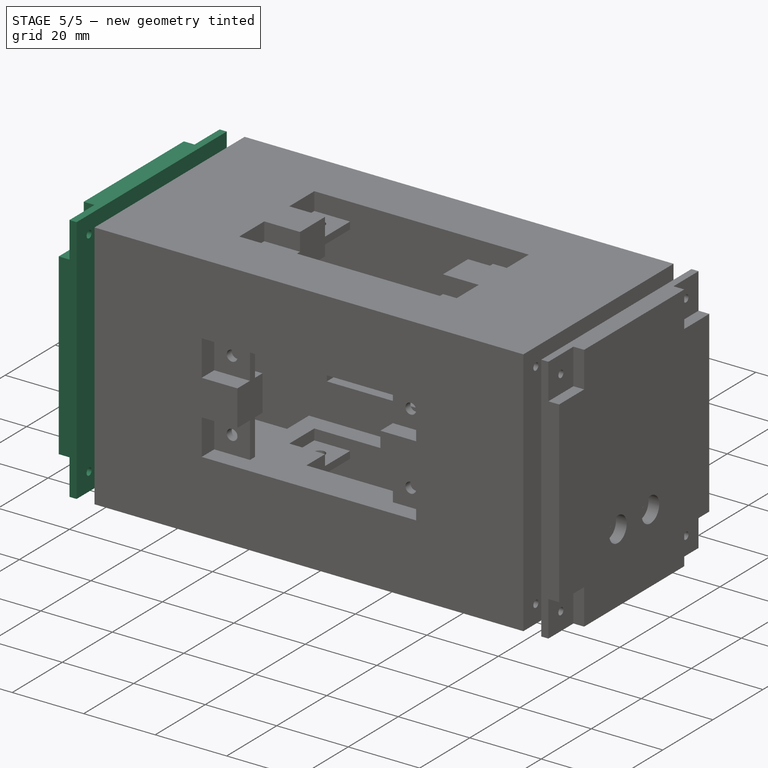
[diagram: stage 5 of 5 — iso view after this stage's code; geometry added in this stage tinted green]
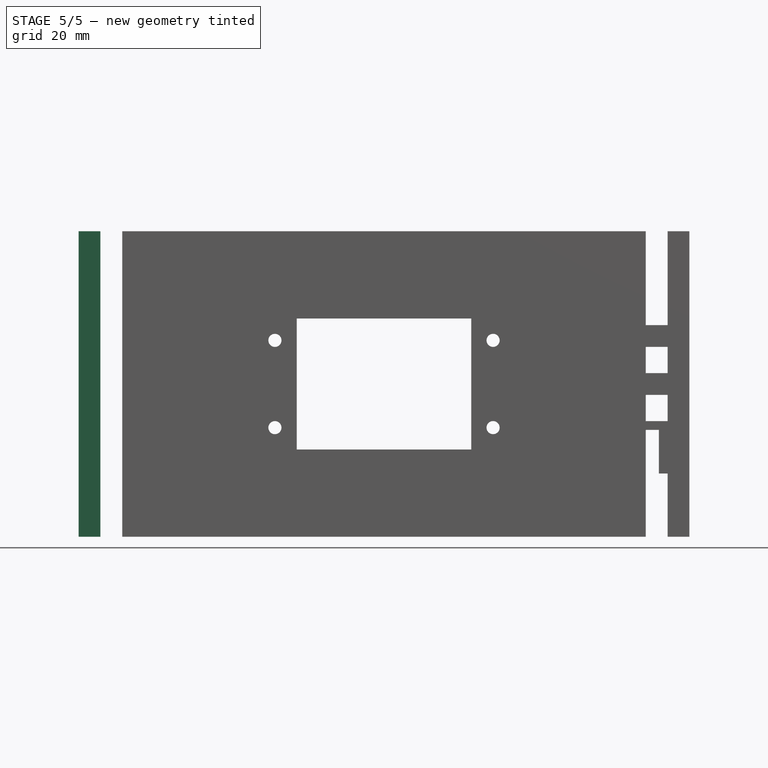
[diagram: stage 5 of 5 — front view after this stage's code; geometry added in this stage tinted green]
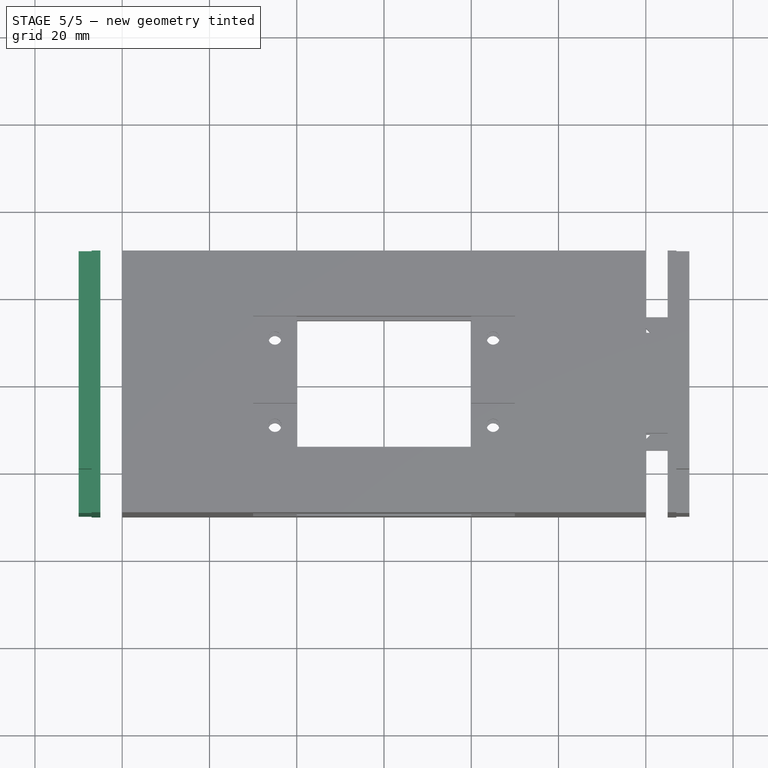
[diagram: stage 5 of 5 — top view after this stage's code; geometry added in this stage tinted green]
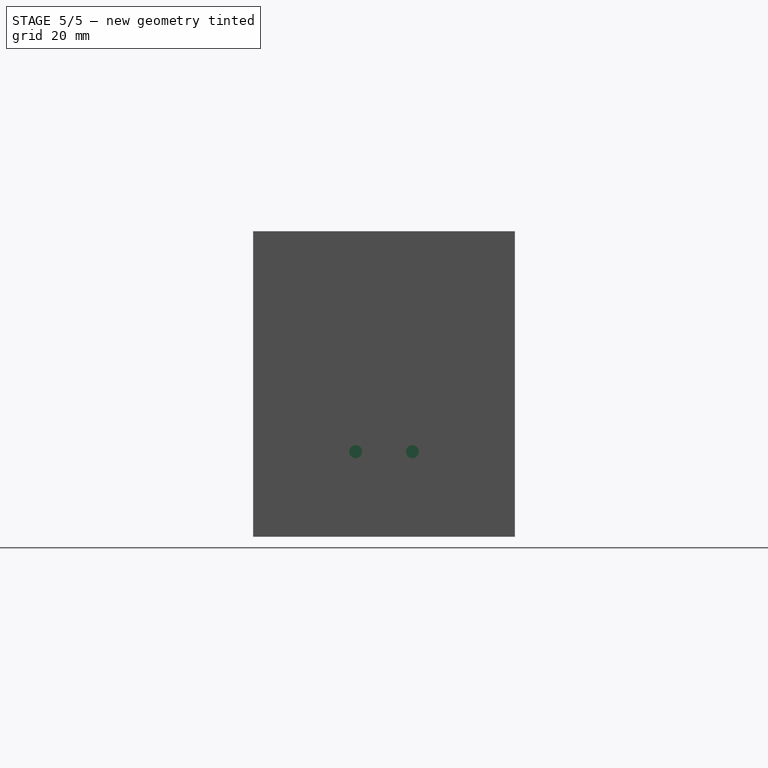
[diagram: stage 5 of 5 — right view after this stage's code; geometry added in this stage tinted green]
FEATURE [Part::Box] Box002  label="BaseTapa"
  Height = 70
  Length = 5
  Width = 60
FEATURE [Part::Box] Box003  label="HuecoTapa"
  Height = 10
  Length = 3
  Width = 10
FEATURE [Part::FeaturePython] Array004  label="HuecosTapa"  # Draft array (typed FeaturePython)
  Angle = 360
  ArrayType = 0
  Axis = (0,0,1)
  Base = -> Box003
  Center = (0,0,0)
  Fuse = false
  IntervalAxis = (0,0,0)
  IntervalX = (0,0,60)
  IntervalY = (0,50,0)
  IntervalZ = (0,0,0)
  NumberPolar = 1
  NumberX = 2
  NumberY = 2
  NumberZ = 1
  Placement = pos=(2,0,0) rot=(0,0,1;0rad)
FEATURE [Part::Cut] Cut005  label="BaseTapa_2"
  Base = -> Box002
  Tool = -> Array004
FEATURE [Part::Cylinder] Cylinder004  label="AgujeroTapa"
  Angle = 360
  Height = 30
  Placement = pos=(-10,5,5) rot=(0,1,0;1.5708rad)
  Radius = 1
FEATURE [Part::FeaturePython] Array005  label="AgujerosTapa"  # Draft array (typed FeaturePython)
  Angle = 360
  ArrayType = 0
  Axis = (0,0,1)
  Base = -> Cylinder004
  Center = (0,0,0)
  Fuse = false
  IntervalAxis = (0,0,0)
  IntervalX = (0,0,60)
  IntervalY = (0,50,0)
  IntervalZ = (0,0,0)
  NumberPolar = 1
  NumberX = 2
  NumberY = 2
  NumberZ = 1
FEATURE [Part::Cut] Cut006  label="BaseTapa_A"
  Base = -> Cut005
  Tool = -> Array005
FEATURE [Sketcher::SketchObject] Sketch009  label="AgujerosA_Ext"
  ExternalGeometry = -> [Cut006]
  Placement = pos=(5,0,0) rot=(0.57735,0.57735,0.57735;2.0944rad)
  Support = -> Cut006 [Face12]
  sketch-geometry (11):
    g0: LineSegment [constr] StartX=15 StartY=63 StartZ=0 EndX=45 EndY=63 EndZ=0
    g1: LineSegment [constr] StartX=45 StartY=63 StartZ=0 EndX=45 EndY=5 EndZ=0
    g2: LineSegment [constr] StartX=45 StartY=5 StartZ=0 EndX=15 EndY=5 EndZ=0
    g3: LineSegment [constr] StartX=15 StartY=5 StartZ=0 EndX=15 EndY=63 EndZ=0
    g4: Circle CenterX=17.5 CenterY=61 CenterZ=0 NormalX=0 NormalY=0 NormalZ=1 Radius=3.5
    g5: Circle CenterX=42.5 CenterY=61 CenterZ=0 NormalX=0 NormalY=0 NormalZ=1 Radius=3.5
    g6: Circle CenterX=42.5 CenterY=8.5 CenterZ=0 NormalX=0 NormalY=0 NormalZ=1 Radius=3.5
    g7: Circle CenterX=17.5 CenterY=8.5 CenterZ=0 NormalX=0 NormalY=0 NormalZ=1 Radius=3.5
    g8: LineSegment [constr] StartX=17.5 StartY=61 StartZ=0 EndX=42.5 EndY=61 EndZ=0
    g9: LineSegment [constr] StartX=17.5 StartY=8.5 StartZ=0 EndX=42.5 EndY=8.5 EndZ=0
    g10: LineSegment [constr] StartX=17.5 StartY=61 StartZ=0 EndX=17.5 EndY=8.5 EndZ=0
  constraints (32):
    c: Coincident(g0,g1)
    c: Coincident(g1,g2)
    c: Coincident(g2,g3)
    c: Coincident(g3,g0)
    c: Horizontal(g0)
    c: Horizontal(g2)
    c: Vertical(g1)
    c: Vertical(g3)
    c: Equal(g0,g2)
    c: Equal(g3,g1)
    c: DistanceY(g3,g3) = 58
    c: DistanceX(g0,g0) = 30
    c: DistanceY(g1,g-4) = 5
    c: DistanceX(g1,g-4) = 15
    c: Horizontal(g8)
    c: Coincident(g8,g5)
    c: Coincident(g4,g8)
    c: DistanceX(g8,g8) = 25
    c: Coincident(g9,g7)
    c: Coincident(g9,g6)
    c: Horizontal(g9)
    c: DistanceX(g9,g9) = 25
    c: Coincident(g10,g4)
    c: Coincident(g10,g7)
    c: Vertical(g10)
    c: DistanceY(g10,g10) = 52.5
    c: Radius(g4) = 3.5
    c: Equal(g4,g5)
    c: Equal(g5,g6)
    c: Equal(g6,g7)
    c: DistanceX(g6,g1) = 2.5
    c: DistanceY(g1,g6) = 3.5
FEATURE [PartDesign::Pocket] Pocket004  label="BaseTapa_A_2"
  Length = 3
  Sketch = -> Sketch009
  Type = 0
FEATURE [Part::Cylinder] Cylinder006  label="AgujeroA_Int"
  Angle = 360
  Height = 15
  Placement = pos=(0,17.5,8.5) rot=(0,1,0;1.5708rad)
  Radius = 1.5
FEATURE [Part::FeaturePython] Array008  label="AgujerosA_Int"  # Draft array (typed FeaturePython)
  Angle = 360
  ArrayType = 0
  Axis = (0,0,1)
  Base = -> Cylinder006
  Center = (0,0,0)
  Fuse = false
  IntervalAxis = (0,0,0)
  IntervalX = (0,0,52.5)
  IntervalY = (0,25,0)
  IntervalZ = (0,0,0)
  NumberPolar = 1
  NumberX = 2
  NumberY = 2
  NumberZ = 1
  Placement = pos=(-7,0,0) rot=(0,0,1;0rad)
FEATURE [Part::Cut] Cut009  label="TapaA"
  Base = -> Pocket004
  Placement = pos=(-5,50,-10) rot=(0,0,1;3.14159rad)
  Tool = -> Array008
FEATURE [Part::Cut] Cut010  label="Base_7"
  Base = -> Cut004
  Tool = -> Array009
FEATURE [Part::Cut] Cut011  label="Carcasa_Control"
  Base = -> Cut010
  Tool = -> Box007
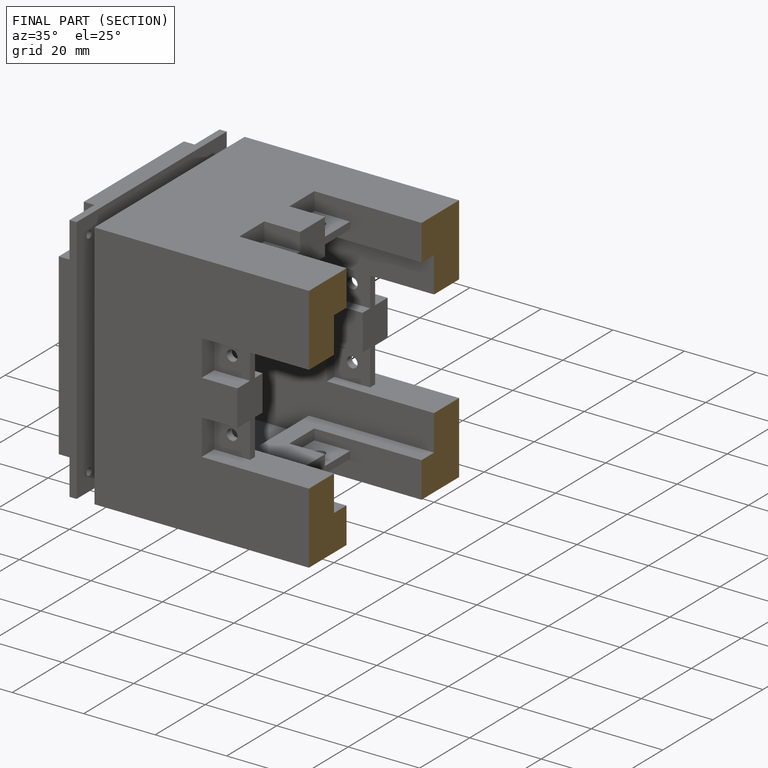
[diagram: finished part — half-section view (interior)]
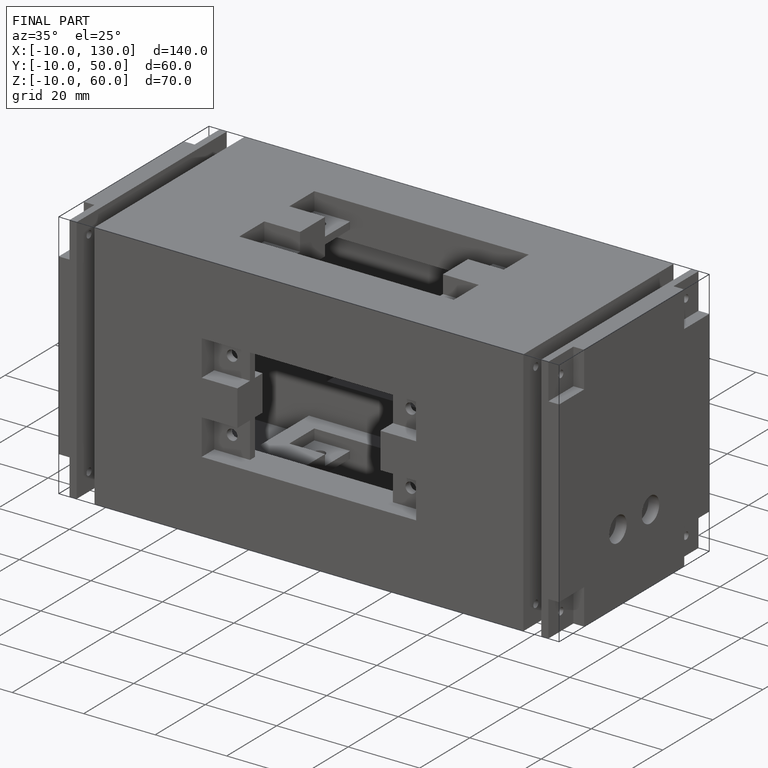
[diagram: finished part — iso view with bounding-box wireframe]
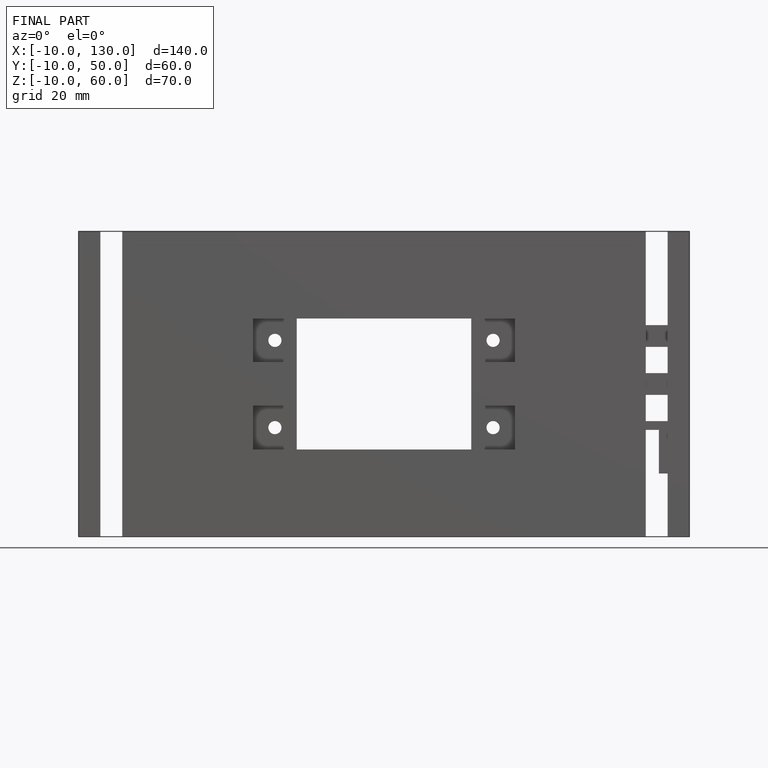
[diagram: finished part — front view with bounding-box wireframe]
